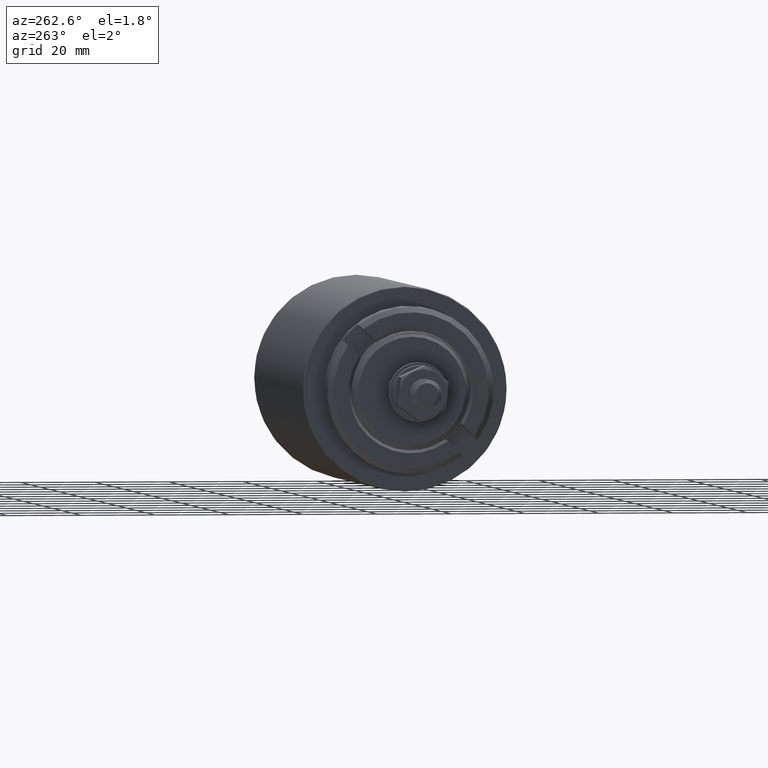
[diagram: clean part render]
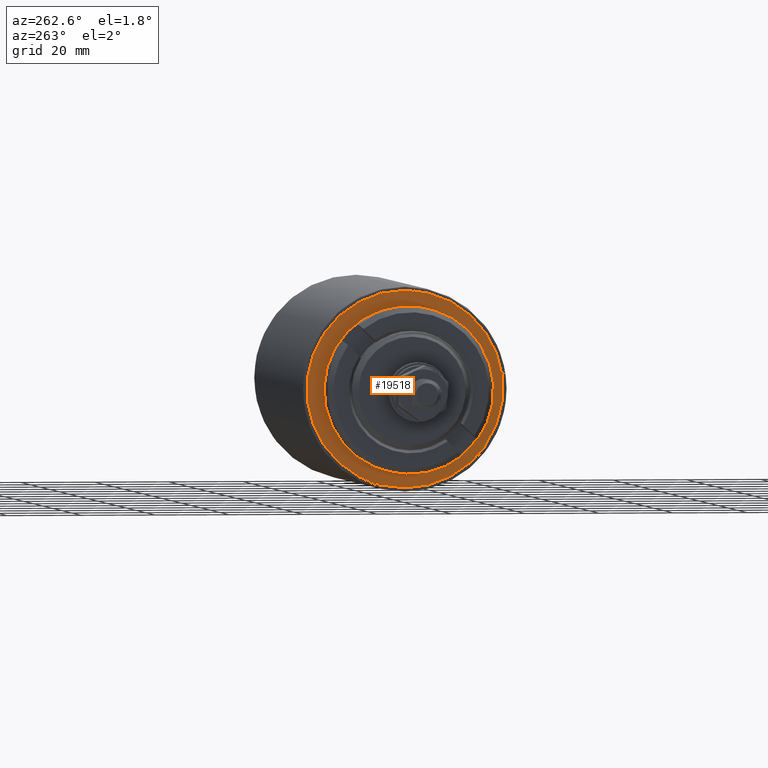
[diagram: same view with one face highlighted and labeled with its STEP entity id]
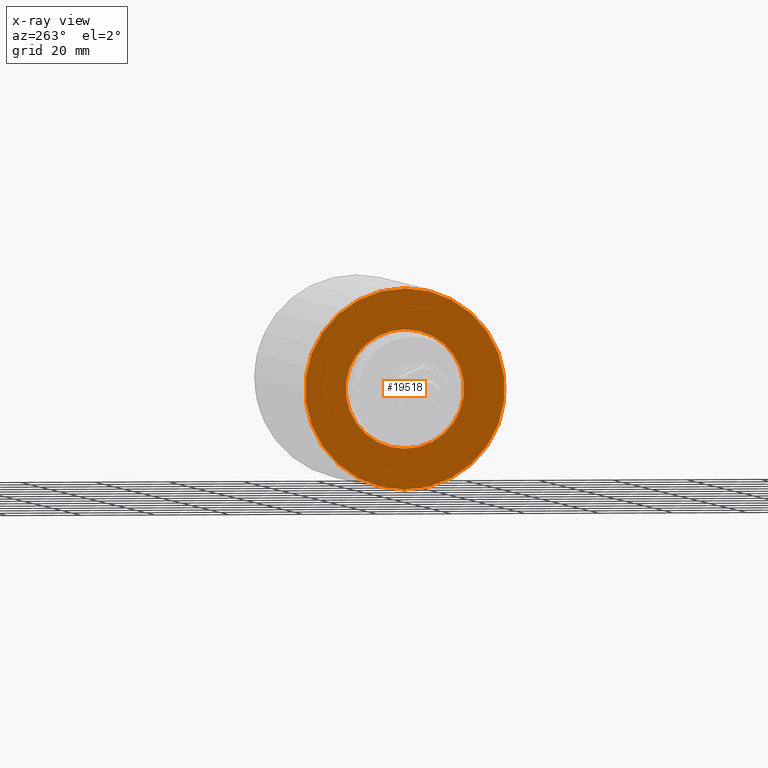
[diagram: x-ray of the same camera — body ghosted, the highlighted face saturated]
A machine part, auxiliary view. The second image highlights one B-rep face of the part: STEP entity #19518.
The next image is the same camera in x-ray: the body ghosted, the highlighted face saturated — about 0% of this face is hidden behind the body in this view.
In plain terms, the highlighted planar face has unit normal (-1, 0, 0).
Its self-contained STEP definition (entity closure, byte-faithful):
#1643 = DIRECTION ( 'NONE',  ( 0.000000000000000000, 0.000000000000000000, -1.000000000000000000 ) ) ;
#3437 = DIRECTION ( 'NONE',  ( 1.000000000000000000, -0.000000000000000000, -0.000000000000000000 ) ) ;
#4553 = DIRECTION ( 'NONE',  ( 0.000000000000000000, 0.000000000000000000, 1.000000000000000000 ) ) ;
#4685 = DIRECTION ( 'NONE',  ( 1.000000000000000000, -0.000000000000000000, -0.000000000000000000 ) ) ;
#5209 = DIRECTION ( 'NONE',  ( 0.000000000000000000, 0.000000000000000000, -1.000000000000000000 ) ) ;
#5293 = ORIENTED_EDGE ( 'NONE', *, *, #10941, .F. ) ;
#5458 = AXIS2_PLACEMENT_3D ( 'NONE', #17556, #17796, #4553 ) ;
#5500 = CARTESIAN_POINT ( 'NONE',  ( 0.000000000000000000, 0.000000000000000000, 0.000000000000000000 ) ) ;
#5873 = VERTEX_POINT ( 'NONE', #21778 ) ;
#6860 = CARTESIAN_POINT ( 'NONE',  ( 0.000000000000000000, 0.000000000000000000, 0.000000000000000000 ) ) ;
#7193 = VERTEX_POINT ( 'NONE', #22909 ) ;
#7534 = VERTEX_POINT ( 'NONE', #16042 ) ;
#8273 = CIRCLE ( 'NONE', #15664, 27.00000000000000000 ) ;
#8396 = EDGE_CURVE ( 'NONE', #7193, #7534, #8273, .T. ) ;
#8714 = EDGE_CURVE ( 'NONE', #13753, #5873, #10751, .T. ) ;
#10402 = ORIENTED_EDGE ( 'NONE', *, *, #20253, .T. ) ;
#10463 = FACE_BOUND ( 'NONE', #18837, .T. ) ;
#10588 = DIRECTION ( 'NONE',  ( 0.000000000000000000, 0.000000000000000000, -1.000000000000000000 ) ) ;
#10751 = CIRCLE ( 'NONE', #23462, 16.00000000000000000 ) ;
#10853 = CARTESIAN_POINT ( 'NONE',  ( 0.000000000000000000, 0.000000000000000000, 0.000000000000000000 ) ) ;
#10941 = EDGE_CURVE ( 'NONE', #7534, #7193, #16881, .T. ) ;
#12386 = FACE_OUTER_BOUND ( 'NONE', #17275, .T. ) ;
#12515 = PLANE ( 'NONE',  #5458 ) ;
#12542 = ORIENTED_EDGE ( 'NONE', *, *, #8714, .T. ) ;
#12909 = DIRECTION ( 'NONE',  ( 1.000000000000000000, -0.000000000000000000, -0.000000000000000000 ) ) ;
#13753 = VERTEX_POINT ( 'NONE', #21280 ) ;
#14876 = CIRCLE ( 'NONE', #18543, 16.00000000000000000 ) ;
#15664 = AXIS2_PLACEMENT_3D ( 'NONE', #10853, #4685, #10588 ) ;
#16042 = CARTESIAN_POINT ( 'NONE',  ( 0.000000000000000000, 0.000000000000000000, -27.00000000000000000 ) ) ;
#16881 = CIRCLE ( 'NONE', #19337, 27.00000000000000000 ) ;
#17275 = EDGE_LOOP ( 'NONE', ( #5293, #24654 ) ) ;
#17556 = CARTESIAN_POINT ( 'NONE',  ( 2.168404344971008868E-16, 16.00000000000000000, 0.000000000000000000 ) ) ;
#17796 = DIRECTION ( 'NONE',  ( -1.000000000000000000, 0.000000000000000000, 0.000000000000000000 ) ) ;
#18543 = AXIS2_PLACEMENT_3D ( 'NONE', #23162, #21218, #24694 ) ;
#18837 = EDGE_LOOP ( 'NONE', ( #10402, #12542 ) ) ;
#19337 = AXIS2_PLACEMENT_3D ( 'NONE', #6860, #12909, #5209 ) ;
#19518 = ADVANCED_FACE ( 'NONE', ( #10463, #12386 ), #12515, .T. ) ;
#20253 = EDGE_CURVE ( 'NONE', #5873, #13753, #14876, .T. ) ;
#21218 = DIRECTION ( 'NONE',  ( 1.000000000000000000, -0.000000000000000000, -0.000000000000000000 ) ) ;
#21280 = CARTESIAN_POINT ( 'NONE',  ( 0.000000000000000000, 1.959434878635765131E-15, 16.00000000000000000 ) ) ;
#21778 = CARTESIAN_POINT ( 'NONE',  ( 0.000000000000000000, 0.000000000000000000, -16.00000000000000000 ) ) ;
#22909 = CARTESIAN_POINT ( 'NONE',  ( 0.000000000000000000, 3.306546357697853733E-15, 27.00000000000000000 ) ) ;
#23162 = CARTESIAN_POINT ( 'NONE',  ( 0.000000000000000000, 0.000000000000000000, 0.000000000000000000 ) ) ;
#23462 = AXIS2_PLACEMENT_3D ( 'NONE', #5500, #3437, #1643 ) ;
#24654 = ORIENTED_EDGE ( 'NONE', *, *, #8396, .F. ) ;
#24694 = DIRECTION ( 'NONE',  ( 0.000000000000000000, 0.000000000000000000, -1.000000000000000000 ) ) ;